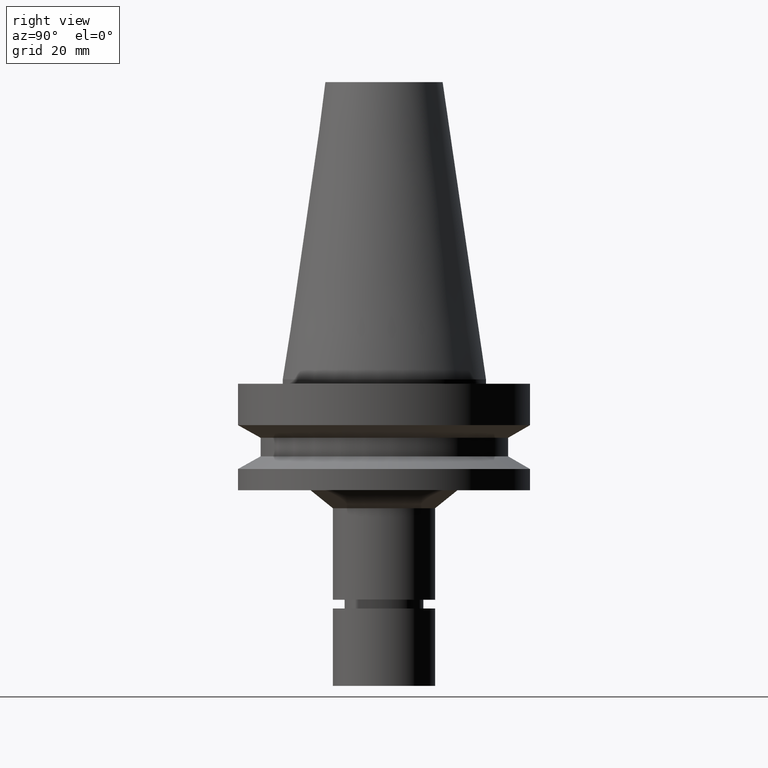
[diagram: clean part render]
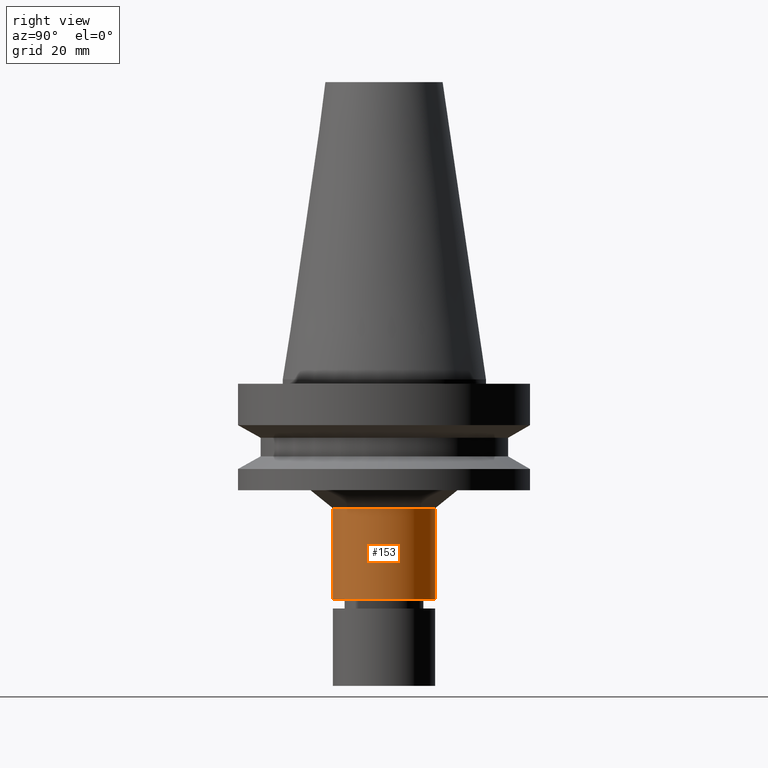
[diagram: same view with one face highlighted and labeled with its STEP entity id]
A machine part, right view. The second image highlights one B-rep face of the part: STEP entity #153.
In plain terms, the highlighted cylindrical surface (bore or boss wall) has radius 17.5 mm, axis along (-0, 0, 1).
Its self-contained STEP definition (entity closure, byte-faithful):
#97=EDGE_CURVE('Unnamed[1]',#233,#233,#234,.T.);
#153=ADVANCED_FACE('Unnamed[1]',(#321,#322),#323,.T.);
#169=EDGE_CURVE('Unnamed[1]',#345,#345,#346,.T.);
#233=VERTEX_POINT('',#417);
#234=CIRCLE('',#418,17.4999999999986);
#321=FACE_BOUND('',#527,.T.);
#322=FACE_BOUND('',#528,.T.);
#323=CYLINDRICAL_SURFACE('',#529,17.4999999999997);
#345=VERTEX_POINT('',#556);
#346=CIRCLE('',#557,17.5000000000008);
#417=CARTESIAN_POINT('',(4.62304166678125E-015,17.4999999999986,-75.4999999999998));
#418=AXIS2_PLACEMENT_3D('',#613,#614,#615);
#527=EDGE_LOOP('',(#712));
#528=EDGE_LOOP('',(#713));
#529=AXIS2_PLACEMENT_3D('',#714,#715,#716);
#556=CARTESIAN_POINT('',(2.70369652461894E-015,17.5000000000008,-44.1547150819543));
#557=AXIS2_PLACEMENT_3D('',#738,#739,#740);
#613=CARTESIAN_POINT('',(4.62304166678125E-015,1.29855469350951E-014,-75.4999999999998));
#614=DIRECTION('',(-6.12323399573677E-017,1.40684069954038E-019,1.0));
#615=DIRECTION('',(-4.81853831597151E-033,1.0,-1.40684069954038E-019));
#712=ORIENTED_EDGE('',*,*,#169,.F.);
#713=ORIENTED_EDGE('',*,*,#97,.T.);
#714=CARTESIAN_POINT('',(3.66336909570009E-015,1.29877518262229E-014,-59.8273575409771));
#715=DIRECTION('',(-6.12323399573677E-017,1.40684069954029E-019,1.0));
#716=DIRECTION('',(-4.81853831597633E-033,1.0,-1.40684069954029E-019));
#738=CARTESIAN_POINT('',(2.70369652461894E-015,1.29899567173507E-014,-44.1547150819543));
#739=DIRECTION('',(-6.12323399573677E-017,1.4068406995402E-019,1.0));
#740=DIRECTION('',(-4.8185383159709E-033,1.0,-1.4068406995402E-019));